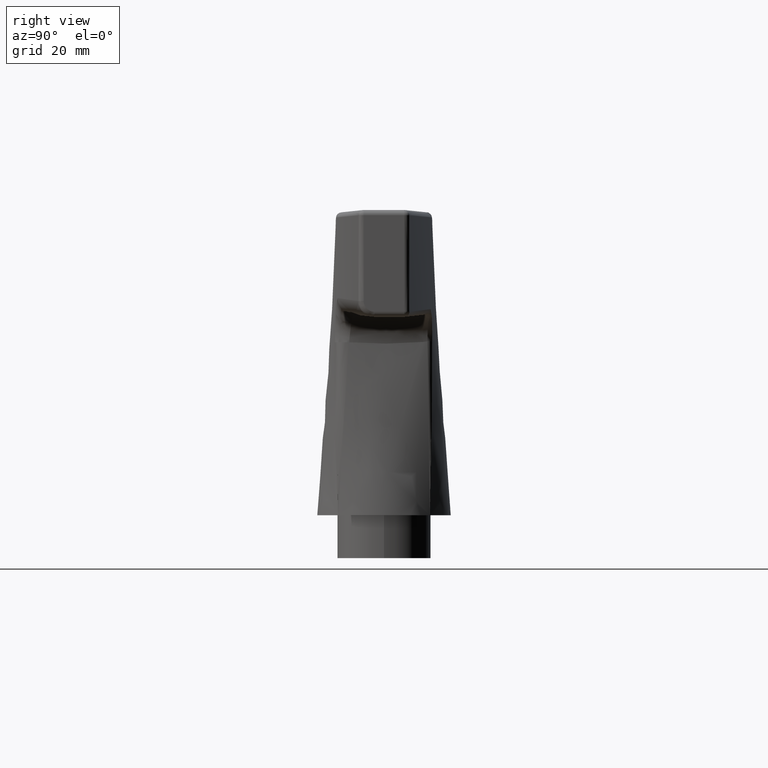
[diagram: clean part render]
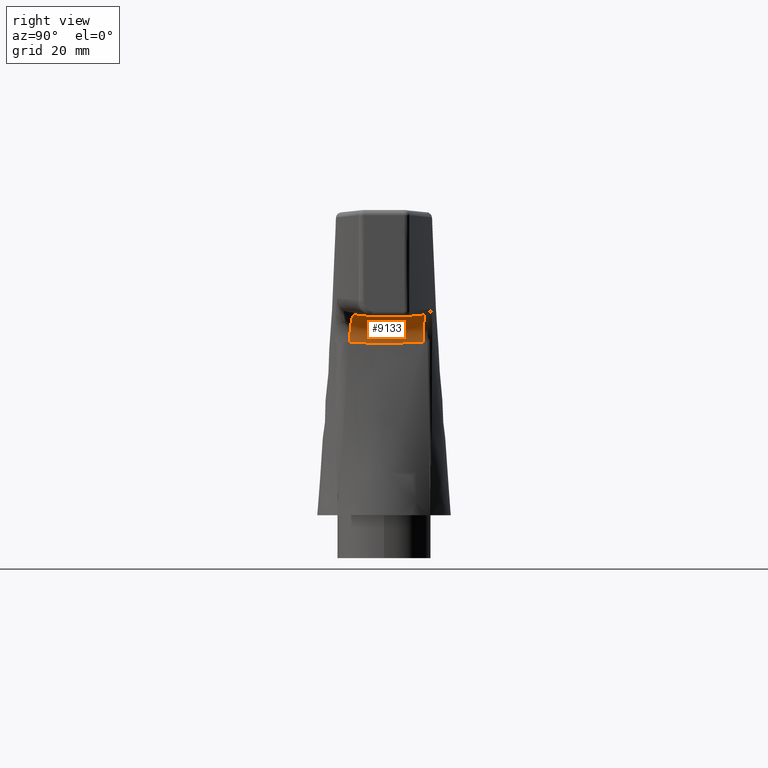
[diagram: same view with one face highlighted and labeled with its STEP entity id]
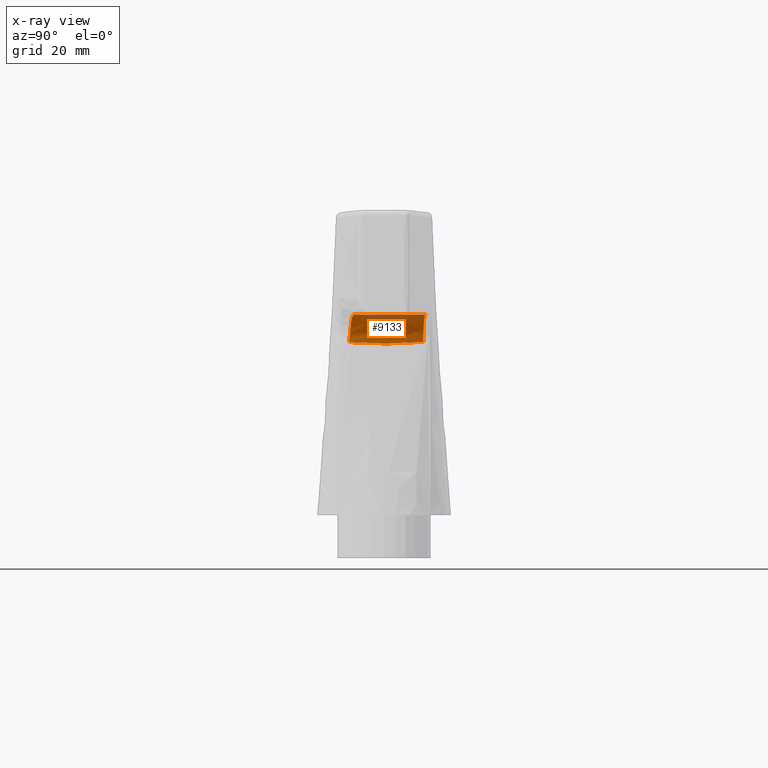
[diagram: x-ray of the same camera — body ghosted, the highlighted face saturated]
A machine part, right view. The second image highlights one B-rep face of the part: STEP entity #9133.
The next image is the same camera in x-ray: the body ghosted, the highlighted face saturated — about 6% of this face is hidden behind the body in this view.
In plain terms, the highlighted face is a freeform B-spline surface patch.
Its self-contained STEP definition (entity closure, byte-faithful):
#169 = ORIENTED_EDGE ( 'NONE', *, *, #2743, .F. ) ;
#173 = CARTESIAN_POINT ( 'NONE',  ( 9.975954108043369600, -6.334165114405435800, 42.06470178774575400 ) ) ;
#229 = CARTESIAN_POINT ( 'NONE',  ( 9.626409129575748100, 7.322434544072117500, 40.35144196098291000 ) ) ;
#368 = CARTESIAN_POINT ( 'NONE',  ( 14.63296157459820200, 7.729692410407451100, 45.42986037914892700 ) ) ;
#658 = CARTESIAN_POINT ( 'NONE',  ( 9.966134740757844700, 1.514232365603075200, 40.04116639176678700 ) ) ;
#694 = CARTESIAN_POINT ( 'NONE',  ( 9.544350317486971500, -5.359737332481311800, 45.45406602322245200 ) ) ;
#853 = CARTESIAN_POINT ( 'NONE',  ( 14.63296157459820200, 7.729692410407451100, 45.42986037914892700 ) ) ;
#931 = CARTESIAN_POINT ( 'NONE',  ( 11.33559117575395400, -6.111319161124975500, 44.12242249956285200 ) ) ;
#962 = B_SPLINE_CURVE_WITH_KNOTS ( 'NONE', 3,
 ( #3815, #7797, #6816, #10536, #4816, #11434, #5842, #12332, #6855, #853 ),
 .UNSPECIFIED., .F., .F.,
 ( 4, 2, 2, 2, 4 ),
 ( 0.003148882064997797900, 0.006495098940142366200, 0.009841315815286935000, 0.01318753269043150400, 0.01653374956557607200 ),
 .UNSPECIFIED. ) ;
#1091 = CARTESIAN_POINT ( 'NONE',  ( 9.694204916436413900, -6.480581762391906000, 40.28533009454626800 ) ) ;
#1126 = CARTESIAN_POINT ( 'NONE',  ( 11.09545475562304900, -6.157210834673297700, 43.87389990719454900 ) ) ;
#1168 = CARTESIAN_POINT ( 'NONE',  ( 9.833378021110894100, -6.384579442929290100, 41.58963925214973800 ) ) ;
#1644 = CARTESIAN_POINT ( 'NONE',  ( 14.97445314620107500, 1.617562248203140900, 45.42823596277978700 ) ) ;
#1685 = CARTESIAN_POINT ( 'NONE',  ( 9.687639733777054100, -6.564665905518019400, 40.29163385818992500 ) ) ;
#1874 = CARTESIAN_POINT ( 'NONE',  ( 14.78781269281391200, -5.638424506621201500, 45.42912377915021700 ) ) ;
#2166 = CARTESIAN_POINT ( 'NONE',  ( 9.710978872763941900, -6.443426141836892100, 40.94608804282119500 ) ) ;
#2620 = CARTESIAN_POINT ( 'NONE',  ( 9.724579249137928400, 6.140096069824972200, 40.25405624337012300 ) ) ;
#2663 = CARTESIAN_POINT ( 'NONE',  ( 9.546023199349432900, -0.7735879979867575900, 45.45405806557173600 ) ) ;
#2708 = CARTESIAN_POINT ( 'NONE',  ( 14.69503899883163300, -6.944846030423043700, 45.42956508757374900 ) ) ;
#2743 = EDGE_CURVE ( 'NONE', #6293, #5184, #2959, .T. ) ;
#2959 = CIRCLE ( 'NONE', #11673, 5.000000000000001800 ) ;
#3065 = FACE_OUTER_BOUND ( 'NONE', #4673, .T. ) ;
#3066 = CARTESIAN_POINT ( 'NONE',  ( 9.626409129575748100, 7.322434544072117500, 40.35144196098291000 ) ) ;
#3120 = CARTESIAN_POINT ( 'NONE',  ( 14.78781269281391200, -5.638424506621201500, 45.42912377915021700 ) ) ;
#3184 = CARTESIAN_POINT ( 'NONE',  ( 9.694204916436413900, -6.480581762391906000, 40.28533009454626800 ) ) ;
#3335 = CARTESIAN_POINT ( 'NONE',  ( 9.927800148437031100, 2.729324103691048700, 40.07294369554568900 ) ) ;
#3392 = EDGE_CURVE ( 'NONE', #10990, #6293, #962, .T. ) ;
#3612 = CARTESIAN_POINT ( 'NONE',  ( 14.73272563331623900, 6.509178298761023400, 45.42938581876880700 ) ) ;
#3650 = CARTESIAN_POINT ( 'NONE',  ( 9.955290475414985400, -1.922746654398302300, 40.04981951818493300 ) ) ;
#3815 = CARTESIAN_POINT ( 'NONE',  ( 14.78781269281391200, -5.638424506621201500, 45.42912377915021700 ) ) ;
#3889 = CARTESIAN_POINT ( 'NONE',  ( 14.44116398498066700, -5.675643466719671800, 45.43077272712492500 ) ) ;
#3947 = VERTEX_POINT ( 'NONE', #7554 ) ;
#4058 = B_SPLINE_CURVE_WITH_KNOTS ( 'NONE', 3,
 ( #3066, #7247, #9193, #3335, #10083, #4321, #11001, #5345, #11893, #6365 ),
 .UNSPECIFIED., .F., .F.,
 ( 4, 2, 2, 2, 4 ),
 ( 0.0000000000000000000, 0.003458492681256712100, 0.006916985362513424300, 0.01037547804377013700, 0.01383397072502684900 ),
 .UNSPECIFIED. ) ;
#4112 = CARTESIAN_POINT ( 'NONE',  ( 14.60917770807983900, 7.729692410403876200, 40.42991694669957800 ) ) ;
#4321 = CARTESIAN_POINT ( 'NONE',  ( 9.979192560335597800, -0.7293160875343028800, 40.03021247439144800 ) ) ;
#4598 = CARTESIAN_POINT ( 'NONE',  ( 9.544541674838148600, 4.949602154705074100, 45.45406511292457500 ) ) ;
#4641 = CARTESIAN_POINT ( 'NONE',  ( 14.96365364219925800, -2.054897249241535400, 45.42828733415333200 ) ) ;
#4673 = EDGE_LOOP ( 'NONE', ( #4941, #6599, #10822, #11355, #169 ) ) ;
#4766 = B_SPLINE_CURVE_WITH_KNOTS ( 'NONE', 3,
 ( #1874, #3889, #10594, #4892, #11494, #5914, #12398, #6940, #931, #7896 ),
 .UNSPECIFIED., .F., .F.,
 ( 4, 2, 2, 2, 4 ),
 ( 1.171933782937904400E-016, 0.001031304452554158700, 0.002062608905108200300, 0.003093913357662242100, 0.004125217810216283400 ),
 .UNSPECIFIED. ) ;
#4816 = CARTESIAN_POINT ( 'NONE',  ( 14.98952780882605600, -0.06678113409988072100, 45.42816425521583300 ) ) ;
#4892 = CARTESIAN_POINT ( 'NONE',  ( 13.43071388118119300, -5.796800785348598800, 45.26373812472040500 ) ) ;
#4941 = ORIENTED_EDGE ( 'NONE', *, *, #3392, .F. ) ;
#5124 = DIRECTION ( 'NONE',  ( 0.9966759848340996900, 0.08146766999845582400, 0.0000000000000000000 ) ) ;
#5139 = CARTESIAN_POINT ( 'NONE',  ( 10.65871229278514900, -6.191273796915921500, 43.36956111697115500 ) ) ;
#5184 = VERTEX_POINT ( 'NONE', #229 ) ;
#5345 = CARTESIAN_POINT ( 'NONE',  ( 9.858301844823326800, -4.185594802366261500, 40.13370958188277600 ) ) ;
#5494 = EDGE_CURVE ( 'NONE', #10990, #3947, #4766, .T. ) ;
#5609 = EDGE_CURVE ( 'NONE', #5184, #6139, #4058, .T. ) ;
#5632 = CARTESIAN_POINT ( 'NONE',  ( 9.930512199798121400, 2.662110956938350100, 40.07063646634336600 ) ) ;
#5679 = CARTESIAN_POINT ( 'NONE',  ( 9.544664254149596500, -4.204909973577510800, 45.45406452982963700 ) ) ;
#5842 = CARTESIAN_POINT ( 'NONE',  ( 14.92071209815235400, 3.278408577229370300, 45.42849159965465600 ) ) ;
#5914 = CARTESIAN_POINT ( 'NONE',  ( 12.46640544262122700, -5.928679446743990900, 44.89573445769520500 ) ) ;
#6128 =( BOUNDED_SURFACE ( )  B_SPLINE_SURFACE ( 3, 2, ( 
 ( #7615, #7535, #8531 ),
 ( #2620, #9445, #3612 ),
 ( #10342, #4598, #11254 ),
 ( #5632, #12148, #6654 ),
 ( #658, #7656, #1644 ),
 ( #8567, #2663, #9484 ),
 ( #3650, #10388, #4641 ),
 ( #11290, #5679, #12190 ),
 ( #6696, #694, #7698 ),
 ( #1685, #8604, #2708 ) ),
 .UNSPECIFIED., .F., .F., .F. ) 
 B_SPLINE_SURFACE_WITH_KNOTS ( ( 4, 2, 2, 2, 4 ),
 ( 3, 3 ),
 ( 0.0000000000000000000, 0.003672782339825954100, 0.007345564679651908300, 0.01101834701947786200, 0.01469112935930381700 ),
 ( 0.0000000000000000000, 1.000000000000000000 ),
 .UNSPECIFIED. ) 
 GEOMETRIC_REPRESENTATION_ITEM ( )  RATIONAL_B_SPLINE_SURFACE ( (
 ( 1.000000000000000000, 0.6998445542803053400, 1.000000000000000000),
 ( 1.000000000000000000, 0.6929098667855013700, 1.000000000000000000),
 ( 1.000000000000000000, 0.6873402235441062900, 1.000000000000000000),
 ( 1.000000000000000000, 0.6796041385046184300, 1.000000000000000000),
 ( 1.000000000000000000, 0.6774340855224318900, 1.000000000000000000),
 ( 1.000000000000000000, 0.6766693877465521600, 1.000000000000000000),
 ( 1.000000000000000000, 0.6780758137199525100, 1.000000000000000000),
 ( 1.000000000000000000, 0.6843593269274657100, 1.000000000000000000),
 ( 1.000000000000000000, 0.6892298677014363500, 1.000000000000000000),
 ( 1.000000000000000000, 0.6955794588332842000, 1.000000000000000000) ) ) 
 REPRESENTATION_ITEM ( '' )  SURFACE ( )  );
#6139 = VERTEX_POINT ( 'NONE', #1091 ) ;
#6164 = CARTESIAN_POINT ( 'NONE',  ( 10.15617683738332000, -6.282575728526596000, 42.52400243171958000 ) ) ;
#6293 = VERTEX_POINT ( 'NONE', #368 ) ;
#6365 = CARTESIAN_POINT ( 'NONE',  ( 9.694204916436413900, -6.480581762391906000, 40.28533009454626800 ) ) ;
#6599 = ORIENTED_EDGE ( 'NONE', *, *, #5494, .T. ) ;
#6616 = EDGE_CURVE ( 'NONE', #3947, #6139, #12127, .T. ) ;
#6654 = CARTESIAN_POINT ( 'NONE',  ( 14.93894544208775900, 2.842181727837787400, 45.42840486678967700 ) ) ;
#6696 = CARTESIAN_POINT ( 'NONE',  ( 9.779771902832260700, -5.389106488981675500, 40.20302478649222200 ) ) ;
#6816 = CARTESIAN_POINT ( 'NONE',  ( 14.91590516912555700, -3.411420051548636100, 45.42851446538504200 ) ) ;
#6855 = CARTESIAN_POINT ( 'NONE',  ( 14.72383197282172400, 6.617983389596760800, 45.42942812437424000 ) ) ;
#6940 = CARTESIAN_POINT ( 'NONE',  ( 11.60154452998744800, -6.064856553127637700, 44.34632536653473500 ) ) ;
#7173 = CARTESIAN_POINT ( 'NONE',  ( 9.922862446821124400, -6.351534655627278700, 41.90698284131756400 ) ) ;
#7247 = CARTESIAN_POINT ( 'NONE',  ( 9.721534538003441000, 6.176765874511140500, 40.25707662692359900 ) ) ;
#7535 = CARTESIAN_POINT ( 'NONE',  ( 9.546741092954432500, 7.313938530515466500, 45.45405465067504000 ) ) ;
#7554 = CARTESIAN_POINT ( 'NONE',  ( 11.09545475562304900, -6.157210834673297700, 43.87389990719454900 ) ) ;
#7615 = CARTESIAN_POINT ( 'NONE',  ( 9.626409129575742800, 7.322434544072216900, 40.35144196098291800 ) ) ;
#7656 = CARTESIAN_POINT ( 'NONE',  ( 9.545828606938769700, 1.504243156231349600, 45.45405899121225000 ) ) ;
#7698 = CARTESIAN_POINT ( 'NONE',  ( 14.78818533496354200, -5.723992171420508900, 45.42912200655590000 ) ) ;
#7797 = CARTESIAN_POINT ( 'NONE',  ( 14.86054851687228000, -4.525643637952881300, 45.42877778740971500 ) ) ;
#7896 = CARTESIAN_POINT ( 'NONE',  ( 11.09545475562304900, -6.157210834673297700, 43.87389990719454900 ) ) ;
#8134 = CARTESIAN_POINT ( 'NONE',  ( 9.796764624010538800, -6.400296757251224400, 41.42971266876895000 ) ) ;
#8531 = CARTESIAN_POINT ( 'NONE',  ( 14.63296157459849500, 7.729692410403889500, 45.42986037914892700 ) ) ;
#8567 = CARTESIAN_POINT ( 'NONE',  ( 9.978549896189539600, -0.7777136630017376100, 40.03075241873278900 ) ) ;
#8604 = CARTESIAN_POINT ( 'NONE',  ( 9.545670216428369800, -6.551960606603061300, 45.45405974464949800 ) ) ;
#9044 = CARTESIAN_POINT ( 'NONE',  ( 9.685594162716658000, -6.466883420609244500, 40.61858962903959700 ) ) ;
#9133 = ADVANCED_FACE ( 'NONE', ( #3065 ), #6128, .F. ) ;
#9193 = CARTESIAN_POINT ( 'NONE',  ( 9.805995100110498800, 5.029451688104222400, 40.18028300286994200 ) ) ;
#9445 = CARTESIAN_POINT ( 'NONE',  ( 9.544681717828410700, 6.112115254007850500, 45.45406444676319800 ) ) ;
#9484 = CARTESIAN_POINT ( 'NONE',  ( 14.98684369095719400, -0.8306076471342662700, 45.42817702310046000 ) ) ;
#9898 = CARTESIAN_POINT ( 'NONE',  ( 10.86513416225523100, -6.168245370854992700, 43.63302685795488900 ) ) ;
#10083 = CARTESIAN_POINT ( 'NONE',  ( 9.964852163212636800, 1.575802810255521000, 40.04224314246261700 ) ) ;
#10342 = CARTESIAN_POINT ( 'NONE',  ( 9.809676393871434600, 4.975116609578196700, 40.17696043609978300 ) ) ;
#10388 = CARTESIAN_POINT ( 'NONE',  ( 9.545545571138781300, -1.905171481070732300, 45.45406033757423400 ) ) ;
#10536 = CARTESIAN_POINT ( 'NONE',  ( 14.98039394382484000, -1.181703962573607000, 45.42820770343257000 ) ) ;
#10594 = CARTESIAN_POINT ( 'NONE',  ( 14.10051889650869900, -5.714734983468342300, 45.39737206155692200 ) ) ;
#10810 = DIRECTION ( 'NONE',  ( 0.08146766388114466700, -0.9966759099948756500, -0.0003875275929645056500 ) ) ;
#10822 = ORIENTED_EDGE ( 'NONE', *, *, #6616, .T. ) ;
#10990 = VERTEX_POINT ( 'NONE', #3120 ) ;
#11001 = CARTESIAN_POINT ( 'NONE',  ( 9.956407669530362300, -1.882216248571781000, 40.04888948605113100 ) ) ;
#11254 = CARTESIAN_POINT ( 'NONE',  ( 14.81802317275105500, 5.287820547708675700, 45.42898007311988800 ) ) ;
#11290 = CARTESIAN_POINT ( 'NONE',  ( 9.855808464085942700, -4.229302956047408000, 40.13590249746690800 ) ) ;
#11355 = ORIENTED_EDGE ( 'NONE', *, *, #5609, .F. ) ;
#11434 = CARTESIAN_POINT ( 'NONE',  ( 14.95967811938417900, 2.163199406784509300, 45.42830624502810400 ) ) ;
#11494 = CARTESIAN_POINT ( 'NONE',  ( 13.09801369258456000, -5.840289420285788700, 45.16174807953790800 ) ) ;
#11673 = AXIS2_PLACEMENT_3D ( 'NONE', #4112, #10810, #5124 ) ;
#11714 = CARTESIAN_POINT ( 'NONE',  ( 10.30482444666912100, -6.248474265048216100, 42.81532780502056600 ) ) ;
#11893 = CARTESIAN_POINT ( 'NONE',  ( 9.783377256676718800, -5.334144129378054300, 40.19984907607576500 ) ) ;
#12127 = B_SPLINE_CURVE_WITH_KNOTS ( 'NONE', 3,
 ( #1126, #9898, #5139, #11714, #6164, #173, #7173, #1168, #8134, #2166, #9044, #3184 ),
 .UNSPECIFIED., .F., .F.,
 ( 4, 2, 2, 2, 2, 4 ),
 ( 0.0000000000000000000, 0.0009985030386211143100, 0.001997006077242228600, 0.002496257596552786800, 0.002995509115863344500, 0.003994012154484460700 ),
 .UNSPECIFIED. ) ;
#12148 = CARTESIAN_POINT ( 'NONE',  ( 9.545169228443487700, 2.639884048585066100, 45.45406212776489200 ) ) ;
#12190 = CARTESIAN_POINT ( 'NONE',  ( 14.86422635483078600, -4.502066797736696400, 45.42876029257037400 ) ) ;
#12332 = CARTESIAN_POINT ( 'NONE',  ( 14.80276740986177800, 5.505573418397788500, 45.42905264214660100 ) ) ;
#12398 = CARTESIAN_POINT ( 'NONE',  ( 12.16710431548416300, -5.973548506433827400, 44.73265107720970200 ) ) ;